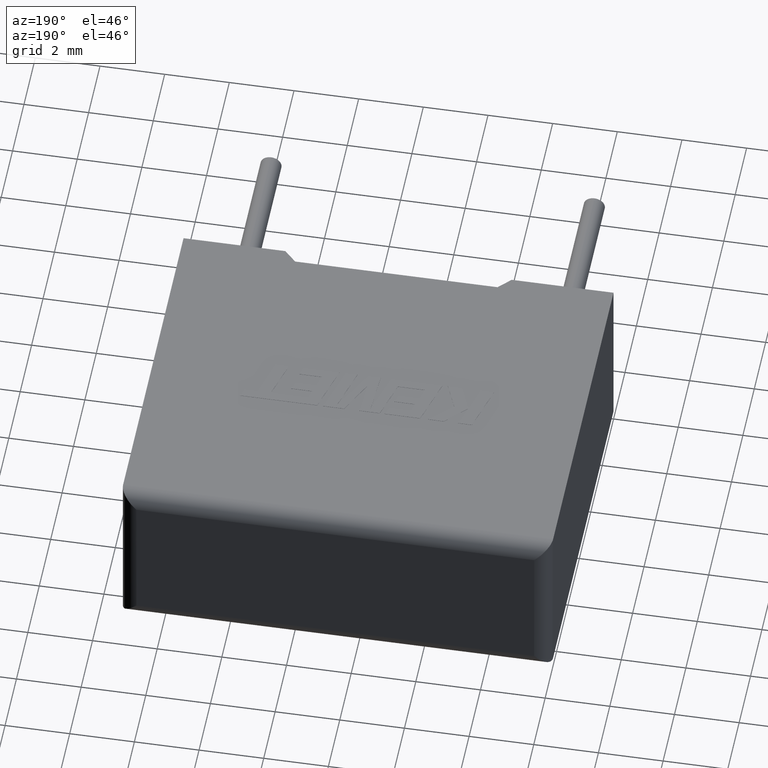
[diagram: clean part render]
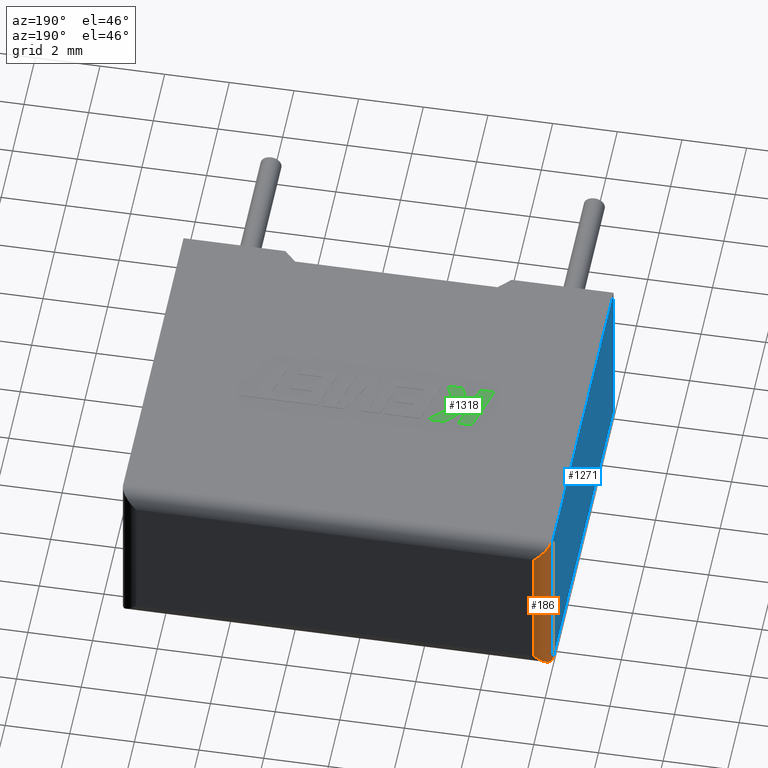
[diagram: same view with three faces highlighted in distinct colors, each labeled with its STEP entity id]
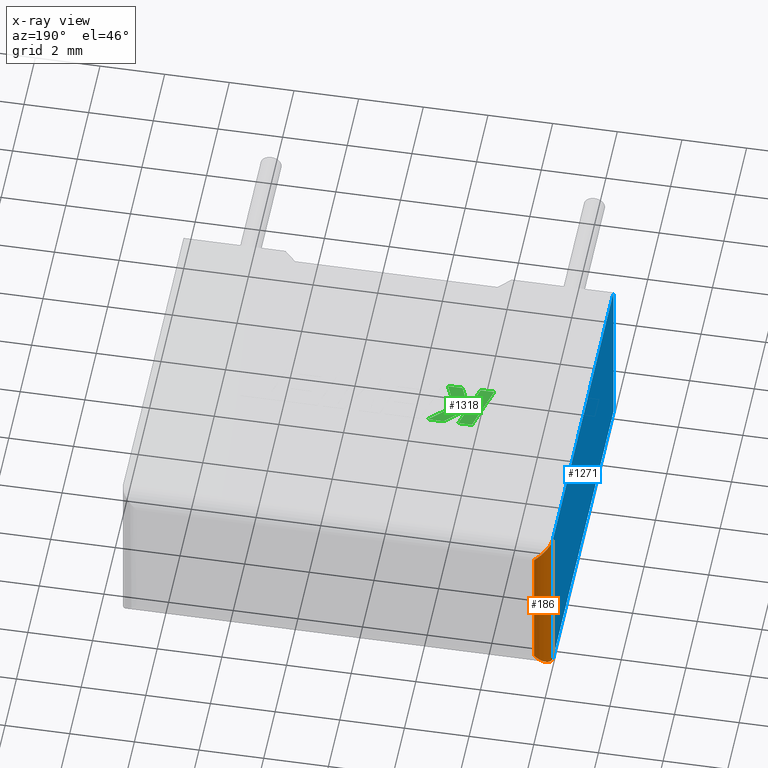
[diagram: x-ray of the same camera — body ghosted, the three highlighted faces saturated]
A machine part, auxiliary view with three faces highlighted in distinct colors.
The next image is the same camera in x-ray (body ghosted, the three faces saturated) — at least one of them is partly hidden behind the body in this view.
Their STEP definitions:

[orange] entity #186 — the highlighted cylindrical surface (edge-blend (fillet) strip) has radius 0.5 mm, axis along (0, 0, -1).
#115 = EDGE_CURVE ( 'NONE', #2357, #2179, #1698, .T. ) ;
#186 = ADVANCED_FACE ( 'NONE', ( #1885 ), #1630, .T. ) ;
#195 = CARTESIAN_POINT ( 'NONE',  ( 0.5000000000000000000, 11.09999999999999964, 4.699999999999999289 ) ) ;
#259 = CARTESIAN_POINT ( 'NONE',  ( 0.5000000000000000000, 11.09999999999999964, 5.200000000000000178 ) ) ;
#313 = VECTOR ( 'NONE', #458, 1000.000000000000000 ) ;
#384 = VERTEX_POINT ( 'NONE', #1767 ) ;
#443 = AXIS2_PLACEMENT_3D ( 'NONE', #2593, #2800, #1181 ) ;
#458 = DIRECTION ( 'NONE',  ( 0.000000000000000000, 0.000000000000000000, -1.000000000000000000 ) ) ;
#575 = CARTESIAN_POINT ( 'NONE',  ( 0.5000000000000000000, 11.09999999999999964, 0.5000000000000004441 ) ) ;
#649 = CARTESIAN_POINT ( 'NONE',  ( 0.000000000000000000, 10.59999999999999964, 5.200000000000000178 ) ) ;
#853 = ORIENTED_EDGE ( 'NONE', *, *, #1212, .F. ) ;
#889 = ORIENTED_EDGE ( 'NONE', *, *, #115, .T. ) ;
#895 = CARTESIAN_POINT ( 'NONE',  ( 0.2071067811865475727, 11.10000000000000142, 4.992893218813451384 ) ) ;
#934 = CARTESIAN_POINT ( 'NONE',  ( 0.000000000000000000, 10.59999999999999964, 5.200000000000000178 ) ) ;
#1020 = LINE ( 'NONE', #259, #1926 ) ;
#1143 = EDGE_CURVE ( 'NONE', #384, #2553, #2326, .T. ) ;
#1148 = CARTESIAN_POINT ( 'NONE',  ( 1.084202172485504434E-16, 10.89289321881345174, 5.199999999999998401 ) ) ;
#1181 = DIRECTION ( 'NONE',  ( -1.000000000000000000, 0.000000000000000000, 0.000000000000000000 ) ) ;
#1212 = EDGE_CURVE ( 'NONE', #2357, #2553, #1020, .T. ) ;
#1275 = CARTESIAN_POINT ( 'NONE',  ( 0.5000000000000000000, 11.09999999999999964, 0.5000000000000004441 ) ) ;
#1443 = DIRECTION ( 'NONE',  ( -0.000000000000000000, -0.000000000000000000, 1.000000000000000000 ) ) ;
#1506 = CARTESIAN_POINT ( 'NONE',  ( 0.2071067811865475172, 11.09999999999999609, 0.2071067811865479058 ) ) ;
#1630 = CYLINDRICAL_SURFACE ( 'NONE', #443, 0.5000000000000000000 ) ;
#1698 =( BOUNDED_CURVE ( )  B_SPLINE_CURVE ( 3, ( #575, #1506, #1972, #2485 ),
 .UNSPECIFIED., .F., .F. ) 
 B_SPLINE_CURVE_WITH_KNOTS ( ( 4, 4 ),
 ( 1.570796326794896780, 3.141592653589793116 ),
 .UNSPECIFIED. ) 
 CURVE ( )  GEOMETRIC_REPRESENTATION_ITEM ( )  RATIONAL_B_SPLINE_CURVE ( ( 1.000000000000000000, 0.8047378541243650485, 0.8047378541243650485, 1.000000000000000000 ) ) 
 REPRESENTATION_ITEM ( '' )  );
#1767 = CARTESIAN_POINT ( 'NONE',  ( 0.000000000000000000, 10.59999999999999964, 5.200000000000000178 ) ) ;
#1797 = ORIENTED_EDGE ( 'NONE', *, *, #2198, .F. ) ;
#1885 = FACE_OUTER_BOUND ( 'NONE', #3015, .T. ) ;
#1926 = VECTOR ( 'NONE', #1443, 1000.000000000000000 ) ;
#1972 = CARTESIAN_POINT ( 'NONE',  ( 1.442892915397364602E-16, 10.89289321881345174, 5.779701605339383077E-16 ) ) ;
#2174 = CARTESIAN_POINT ( 'NONE',  ( 0.5000000000000000000, 11.09999999999999964, 4.699999999999999289 ) ) ;
#2179 = VERTEX_POINT ( 'NONE', #2319 ) ;
#2198 = EDGE_CURVE ( 'NONE', #384, #2179, #2582, .T. ) ;
#2319 = CARTESIAN_POINT ( 'NONE',  ( 0.000000000000000000, 10.59999999999999964, 0.000000000000000000 ) ) ;
#2326 =( BOUNDED_CURVE ( )  B_SPLINE_CURVE ( 3, ( #649, #1148, #895, #195 ),
 .UNSPECIFIED., .F., .F. ) 
 B_SPLINE_CURVE_WITH_KNOTS ( ( 4, 4 ),
 ( 0.000000000000000000, 1.570796326794896558 ),
 .UNSPECIFIED. ) 
 CURVE ( )  GEOMETRIC_REPRESENTATION_ITEM ( )  RATIONAL_B_SPLINE_CURVE ( ( 1.000000000000000000, 0.8047378541243649375, 0.8047378541243649375, 1.000000000000000000 ) ) 
 REPRESENTATION_ITEM ( '' )  );
#2357 = VERTEX_POINT ( 'NONE', #1275 ) ;
#2485 = CARTESIAN_POINT ( 'NONE',  ( 0.000000000000000000, 10.59999999999999964, 0.000000000000000000 ) ) ;
#2540 = ORIENTED_EDGE ( 'NONE', *, *, #1143, .T. ) ;
#2553 = VERTEX_POINT ( 'NONE', #2174 ) ;
#2582 = LINE ( 'NONE', #934, #313 ) ;
#2593 = CARTESIAN_POINT ( 'NONE',  ( 0.5000000000000000000, 10.59999999999999964, 5.200000000000000178 ) ) ;
#2800 = DIRECTION ( 'NONE',  ( 0.000000000000000000, 0.000000000000000000, -1.000000000000000000 ) ) ;
#3015 = EDGE_LOOP ( 'NONE', ( #2540, #853, #889, #1797 ) ) ;

[blue] entity #1271 — the highlighted planar face has unit normal (1, 0, 0).
#32 = DIRECTION ( 'NONE',  ( -0.000000000000000000, -1.000000000000000000, -0.000000000000000000 ) ) ;
#52 = LINE ( 'NONE', #2666, #1326 ) ;
#94 = FACE_OUTER_BOUND ( 'NONE', #1523, .T. ) ;
#120 = VECTOR ( 'NONE', #2882, 1000.000000000000000 ) ;
#222 = EDGE_CURVE ( 'NONE', #275, #345, #52, .T. ) ;
#275 = VERTEX_POINT ( 'NONE', #1244 ) ;
#304 = AXIS2_PLACEMENT_3D ( 'NONE', #953, #2853, #2169 ) ;
#313 = VECTOR ( 'NONE', #458, 1000.000000000000000 ) ;
#345 = VERTEX_POINT ( 'NONE', #645 ) ;
#384 = VERTEX_POINT ( 'NONE', #1767 ) ;
#450 = LINE ( 'NONE', #2375, #1367 ) ;
#458 = DIRECTION ( 'NONE',  ( 0.000000000000000000, 0.000000000000000000, -1.000000000000000000 ) ) ;
#645 = CARTESIAN_POINT ( 'NONE',  ( 0.000000000000000000, 0.000000000000000000, 0.000000000000000000 ) ) ;
#663 = EDGE_CURVE ( 'NONE', #384, #275, #2177, .T. ) ;
#679 = ORIENTED_EDGE ( 'NONE', *, *, #663, .F. ) ;
#727 = ORIENTED_EDGE ( 'NONE', *, *, #2198, .T. ) ;
#934 = CARTESIAN_POINT ( 'NONE',  ( 0.000000000000000000, 10.59999999999999964, 5.200000000000000178 ) ) ;
#953 = CARTESIAN_POINT ( 'NONE',  ( 0.000000000000000000, 0.000000000000000000, 5.200000000000000178 ) ) ;
#1244 = CARTESIAN_POINT ( 'NONE',  ( 0.000000000000000000, 0.000000000000000000, 5.200000000000000178 ) ) ;
#1271 = ADVANCED_FACE ( 'NONE', ( #94 ), #2638, .F. ) ;
#1272 = CARTESIAN_POINT ( 'NONE',  ( 0.000000000000000000, 0.000000000000000000, 5.200000000000000178 ) ) ;
#1326 = VECTOR ( 'NONE', #2195, 1000.000000000000000 ) ;
#1367 = VECTOR ( 'NONE', #32, 1000.000000000000000 ) ;
#1491 = EDGE_CURVE ( 'NONE', #2179, #345, #450, .T. ) ;
#1523 = EDGE_LOOP ( 'NONE', ( #679, #727, #2137, #2836 ) ) ;
#1767 = CARTESIAN_POINT ( 'NONE',  ( 0.000000000000000000, 10.59999999999999964, 5.200000000000000178 ) ) ;
#2137 = ORIENTED_EDGE ( 'NONE', *, *, #1491, .T. ) ;
#2169 = DIRECTION ( 'NONE',  ( 0.000000000000000000, 0.000000000000000000, -1.000000000000000000 ) ) ;
#2177 = LINE ( 'NONE', #1272, #120 ) ;
#2179 = VERTEX_POINT ( 'NONE', #2319 ) ;
#2195 = DIRECTION ( 'NONE',  ( -0.000000000000000000, -0.000000000000000000, -1.000000000000000000 ) ) ;
#2198 = EDGE_CURVE ( 'NONE', #384, #2179, #2582, .T. ) ;
#2319 = CARTESIAN_POINT ( 'NONE',  ( 0.000000000000000000, 10.59999999999999964, 0.000000000000000000 ) ) ;
#2375 = CARTESIAN_POINT ( 'NONE',  ( 0.000000000000000000, 0.000000000000000000, 0.000000000000000000 ) ) ;
#2582 = LINE ( 'NONE', #934, #313 ) ;
#2638 = PLANE ( 'NONE',  #304 ) ;
#2666 = CARTESIAN_POINT ( 'NONE',  ( 0.000000000000000000, 0.000000000000000000, 5.200000000000000178 ) ) ;
#2836 = ORIENTED_EDGE ( 'NONE', *, *, #222, .F. ) ;
#2853 = DIRECTION ( 'NONE',  ( 1.000000000000000000, 0.000000000000000000, 0.000000000000000000 ) ) ;
#2882 = DIRECTION ( 'NONE',  ( -0.000000000000000000, -1.000000000000000000, -0.000000000000000000 ) ) ;

[green] entity #1318 — the highlighted planar face has unit normal (0, 0, -1).
#31 = VERTEX_POINT ( 'NONE', #2143 ) ;
#46 = LINE ( 'NONE', #1873, #2679 ) ;
#64 = EDGE_CURVE ( 'NONE', #2395, #2153, #2948, .T. ) ;
#86 = EDGE_CURVE ( 'NONE', #1958, #1114, #209, .T. ) ;
#129 = CARTESIAN_POINT ( 'NONE',  ( -0.1616953557737341451, -0.04538259395771987448, 5.204999999999997407 ) ) ;
#131 = DIRECTION ( 'NONE',  ( -1.000000000000000000, -0.000000000000000000, -0.000000000000000000 ) ) ;
#182 = DIRECTION ( 'NONE',  ( 0.2755265765475026218, 0.9612934544747576693, 0.000000000000000000 ) ) ;
#198 = VECTOR ( 'NONE', #2643, 1000.000000000000000 ) ;
#209 = LINE ( 'NONE', #336, #2675 ) ;
#284 = ORIENTED_EDGE ( 'NONE', *, *, #2628, .T. ) ;
#311 = ORIENTED_EDGE ( 'NONE', *, *, #386, .T. ) ;
#336 = CARTESIAN_POINT ( 'NONE',  ( 4.641084367750691442, 6.266041733162105665, 5.204999999999999183 ) ) ;
#351 = DIRECTION ( 'NONE',  ( 0.000000000000000000, 0.000000000000000000, -1.000000000000000000 ) ) ;
#386 = EDGE_CURVE ( 'NONE', #31, #1996, #2518, .T. ) ;
#400 = CARTESIAN_POINT ( 'NONE',  ( 3.517719547929847757, 5.630771055075628695, 5.204999999999999183 ) ) ;
#417 = LINE ( 'NONE', #894, #1805 ) ;
#420 = VERTEX_POINT ( 'NONE', #2146 ) ;
#524 = VECTOR ( 'NONE', #2265, 1000.000000000000114 ) ;
#637 = VECTOR ( 'NONE', #131, 1000.000000000000000 ) ;
#714 = DIRECTION ( 'NONE',  ( -0.2762033010252005205, -0.9610992334315860974, -0.000000000000000000 ) ) ;
#754 = ORIENTED_EDGE ( 'NONE', *, *, #64, .T. ) ;
#796 = LINE ( 'NONE', #1661, #198 ) ;
#845 = CARTESIAN_POINT ( 'NONE',  ( 3.699819483766307648, 6.266041733162105665, 5.204999999999999183 ) ) ;
#894 = CARTESIAN_POINT ( 'NONE',  ( 3.502975621282615304, 5.585203039685112891, 5.204999999999999183 ) ) ;
#910 = CARTESIAN_POINT ( 'NONE',  ( 2.847530000000000339, 4.776329999999999742, 5.204999999999999183 ) ) ;
#926 = EDGE_CURVE ( 'NONE', #1219, #3033, #796, .T. ) ;
#1076 = VECTOR ( 'NONE', #2082, 1000.000000000000114 ) ;
#1103 = EDGE_LOOP ( 'NONE', ( #1331, #2798, #284, #2577, #1623, #1633, #2347, #2333, #311, #2990, #754 ) ) ;
#1114 = VERTEX_POINT ( 'NONE', #2341 ) ;
#1120 = CARTESIAN_POINT ( 'NONE',  ( 3.699819483766307648, 6.266041733162105665, 5.204999999999999183 ) ) ;
#1149 = EDGE_CURVE ( 'NONE', #1996, #2395, #2105, .T. ) ;
#1219 = VERTEX_POINT ( 'NONE', #1708 ) ;
#1260 = DIRECTION ( 'NONE',  ( 1.000000000000000000, -1.104435275910379373E-13, 0.000000000000000000 ) ) ;
#1265 = DIRECTION ( 'NONE',  ( -1.000000000000000000, 0.000000000000000000, 0.000000000000000000 ) ) ;
#1305 = CARTESIAN_POINT ( 'NONE',  ( 3.827654525331177116, 4.776329999999953557, 5.204999999999999183 ) ) ;
#1318 = ADVANCED_FACE ( 'NONE', ( #1727 ), #2253, .F. ) ;
#1324 = VECTOR ( 'NONE', #1412, 1000.000000000000114 ) ;
#1331 = ORIENTED_EDGE ( 'NONE', *, *, #1436, .T. ) ;
#1333 = DIRECTION ( 'NONE',  ( -0.7059037656364501867, -0.7083077534943971187, -0.000000000000000000 ) ) ;
#1342 = VERTEX_POINT ( 'NONE', #1592 ) ;
#1412 = DIRECTION ( 'NONE',  ( -0.3829140317376762970, 0.9237839814038765196, 0.000000000000000000 ) ) ;
#1416 = EDGE_CURVE ( 'NONE', #1114, #31, #46, .T. ) ;
#1436 = EDGE_CURVE ( 'NONE', #2153, #1342, #2841, .T. ) ;
#1457 = EDGE_CURVE ( 'NONE', #3033, #1958, #2109, .T. ) ;
#1545 = LINE ( 'NONE', #1305, #524 ) ;
#1592 = CARTESIAN_POINT ( 'NONE',  ( 2.847530000000000339, 4.776329999999999742, 5.204999999999999183 ) ) ;
#1623 = ORIENTED_EDGE ( 'NONE', *, *, #926, .T. ) ;
#1633 = ORIENTED_EDGE ( 'NONE', *, *, #1457, .T. ) ;
#1651 = CARTESIAN_POINT ( 'NONE',  ( 3.271135886549586314, 4.776329999999952669, 5.204999999999999183 ) ) ;
#1661 = CARTESIAN_POINT ( 'NONE',  ( 4.280924919314656130, 4.776329999999953557, 5.204999999999999183 ) ) ;
#1708 = CARTESIAN_POINT ( 'NONE',  ( 3.827654525331177116, 4.776329999999953557, 5.204999999999999183 ) ) ;
#1727 = FACE_OUTER_BOUND ( 'NONE', #1103, .T. ) ;
#1730 = CARTESIAN_POINT ( 'NONE',  ( 3.275647393046111411, 6.266041733162105665, 5.204999999999999183 ) ) ;
#1798 = VERTEX_POINT ( 'NONE', #2295 ) ;
#1805 = VECTOR ( 'NONE', #182, 1000.000000000000114 ) ;
#1873 = CARTESIAN_POINT ( 'NONE',  ( 4.150834125099603256, 6.266041733162105665, 5.204999999999999183 ) ) ;
#1922 = CARTESIAN_POINT ( 'NONE',  ( 3.945642165960281389, 5.585203039685123549, 5.204999999999999183 ) ) ;
#1958 = VERTEX_POINT ( 'NONE', #2636 ) ;
#1967 = CARTESIAN_POINT ( 'NONE',  ( 3.517719547929847757, 5.630771055075628695, 5.204999999999999183 ) ) ;
#1993 = DIRECTION ( 'NONE',  ( 0.7145695586382624365, 0.6995643972269591782, 0.000000000000000000 ) ) ;
#1996 = VERTEX_POINT ( 'NONE', #1967 ) ;
#2082 = DIRECTION ( 'NONE',  ( 0.2755520632520602198, 0.9612861490927312458, 0.000000000000000000 ) ) ;
#2105 = LINE ( 'NONE', #1120, #1076 ) ;
#2109 = LINE ( 'NONE', #1922, #1324 ) ;
#2123 = VECTOR ( 'NONE', #714, 1000.000000000000227 ) ;
#2143 = CARTESIAN_POINT ( 'NONE',  ( 4.150834125099603256, 6.266041733162105665, 5.204999999999999183 ) ) ;
#2146 = CARTESIAN_POINT ( 'NONE',  ( 3.271135886549586314, 4.776329999999952669, 5.204999999999999183 ) ) ;
#2153 = VERTEX_POINT ( 'NONE', #2564 ) ;
#2182 = LINE ( 'NONE', #1651, #3006 ) ;
#2253 = PLANE ( 'NONE',  #2476 ) ;
#2265 = DIRECTION ( 'NONE',  ( 0.3725077383643967122, -0.9280290862137037244, 0.000000000000000000 ) ) ;
#2266 = EDGE_CURVE ( 'NONE', #1342, #420, #2182, .T. ) ;
#2295 = CARTESIAN_POINT ( 'NONE',  ( 3.502975621282615304, 5.585203039685112891, 5.204999999999999183 ) ) ;
#2333 = ORIENTED_EDGE ( 'NONE', *, *, #1416, .T. ) ;
#2341 = CARTESIAN_POINT ( 'NONE',  ( 4.641084367750691442, 6.266041733162105665, 5.204999999999999183 ) ) ;
#2347 = ORIENTED_EDGE ( 'NONE', *, *, #86, .T. ) ;
#2356 = DIRECTION ( 'NONE',  ( -1.000000000000000000, -0.000000000000000000, -0.000000000000000000 ) ) ;
#2395 = VERTEX_POINT ( 'NONE', #845 ) ;
#2419 = CARTESIAN_POINT ( 'NONE',  ( 4.280924919314656130, 4.776329999999953557, 5.204999999999999183 ) ) ;
#2476 = AXIS2_PLACEMENT_3D ( 'NONE', #129, #351, #1265 ) ;
#2518 = LINE ( 'NONE', #400, #2973 ) ;
#2564 = CARTESIAN_POINT ( 'NONE',  ( 3.275647393046111411, 6.266041733162105665, 5.204999999999999183 ) ) ;
#2577 = ORIENTED_EDGE ( 'NONE', *, *, #2997, .T. ) ;
#2628 = EDGE_CURVE ( 'NONE', #420, #1798, #417, .T. ) ;
#2636 = CARTESIAN_POINT ( 'NONE',  ( 3.945642165960281389, 5.585203039685123549, 5.204999999999999183 ) ) ;
#2643 = DIRECTION ( 'NONE',  ( 1.000000000000000000, 0.000000000000000000, 0.000000000000000000 ) ) ;
#2675 = VECTOR ( 'NONE', #1993, 1000.000000000000114 ) ;
#2679 = VECTOR ( 'NONE', #2356, 1000.000000000000000 ) ;
#2798 = ORIENTED_EDGE ( 'NONE', *, *, #2266, .T. ) ;
#2841 = LINE ( 'NONE', #910, #2123 ) ;
#2948 = LINE ( 'NONE', #1730, #637 ) ;
#2973 = VECTOR ( 'NONE', #1333, 1000.000000000000114 ) ;
#2990 = ORIENTED_EDGE ( 'NONE', *, *, #1149, .T. ) ;
#2997 = EDGE_CURVE ( 'NONE', #1798, #1219, #1545, .T. ) ;
#3006 = VECTOR ( 'NONE', #1260, 1000.000000000000000 ) ;
#3033 = VERTEX_POINT ( 'NONE', #2419 ) ;